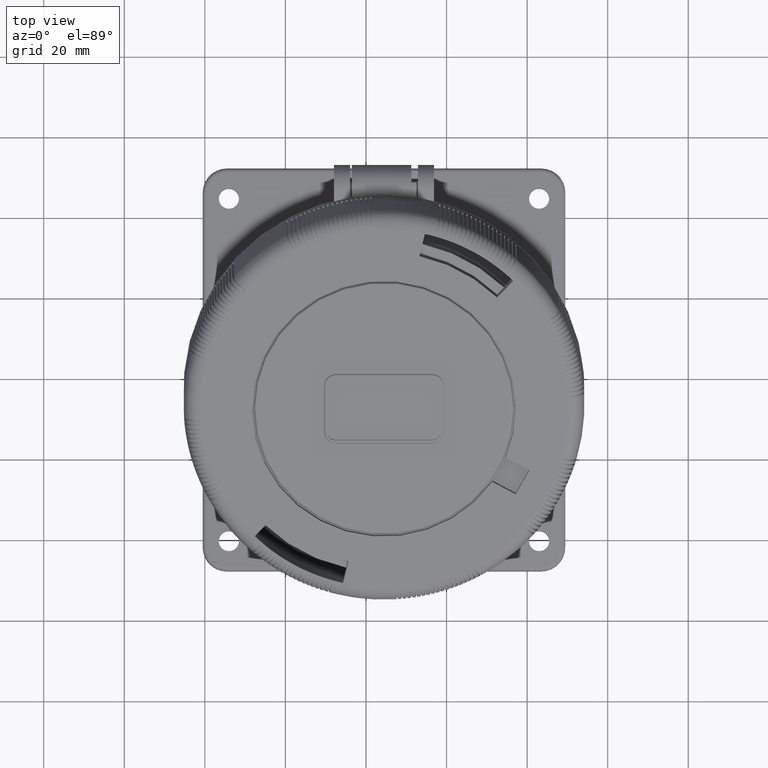
[diagram: clean part render]
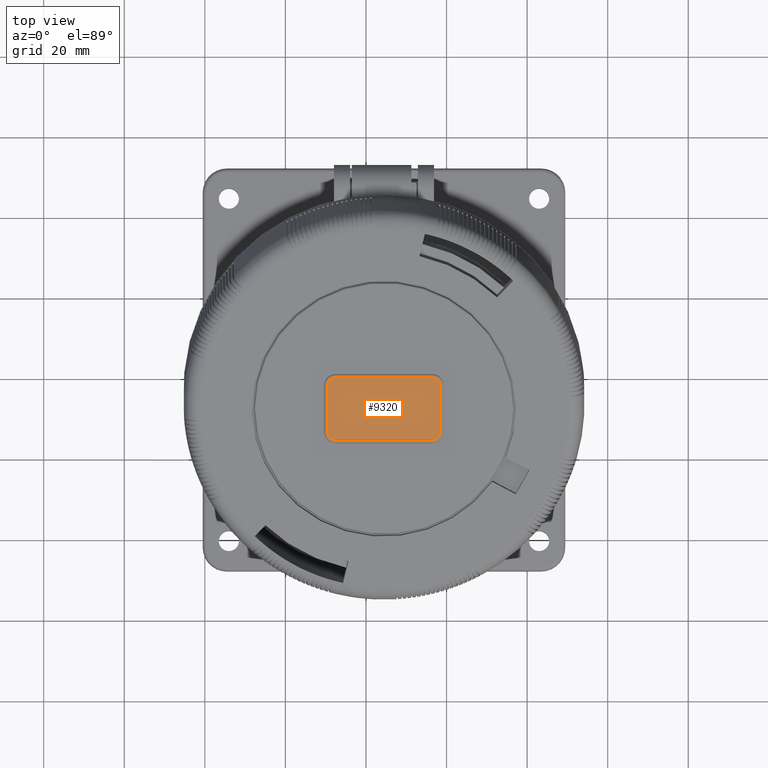
[diagram: same view with one face highlighted and labeled with its STEP entity id]
A machine part, top view. The second image highlights one B-rep face of the part: STEP entity #9320.
In plain terms, the highlighted planar face has unit normal (-0, 0.2588, -0.9659).
Its self-contained STEP definition (entity closure, byte-faithful):
#3360=CARTESIAN_POINT('',(19.7727562927561,32.8724892693701,19.7));
#3370=DIRECTION('',(-1.23518450117107E-16,1.538929603798E-16,-1.));
#3380=DIRECTION('',(0.877341808329295,0.479865972285473,
-3.45199053272326E-17));
#3390=AXIS2_PLACEMENT_3D('',#3360,#3370,#3380);
#3400=PLANE('',#3390);
#6800=CARTESIAN_POINT('',(54.7562035330436,61.1252930096366,19.7));
#6810=VERTEX_POINT('',#6800);
#6840=CARTESIAN_POINT('',(44.228101833092,55.366901342211,19.7));
#6850=DIRECTION('',(0.877341808329295,0.479865972285473,
-3.45199053272326E-17));
#6860=VECTOR('',#6850,1.);
#6870=LINE('',#6840,#6860);
#6880=CARTESIAN_POINT('',(33.7000001331405,49.6085096747853,19.7));
#6890=VERTEX_POINT('',#6880);
#6900=EDGE_CURVE('',#6890,#6810,#6870,.T.);
#7180=CARTESIAN_POINT('',(38.6634401284785,36.3659924136042,19.7));
#7190=VERTEX_POINT('',#7180);
#7220=CARTESIAN_POINT('',(40.4181237451371,37.3257243581752,19.7));
#7230=DIRECTION('',(-9.71445146547012E-17,1.38777878078145E-16,-1.));
#7240=DIRECTION('',(0.877341808329295,0.479865972285473,
-3.45199053272326E-17));
#7250=AXIS2_PLACEMENT_3D('',#7220,#7230,#7240);
#7260=CIRCLE('',#7250,2.);
#7270=CARTESIAN_POINT('',(41.3778556897081,35.5710407415166,19.7));
#7280=VERTEX_POINT('',#7270);
#7290=EDGE_CURVE('',#7280,#7190,#7260,.T.);
#7540=CARTESIAN_POINT('',(51.9059573896596,41.3294324089422,19.7));
#7550=DIRECTION('',(-0.877341808329295,-0.479865972285473,
3.45199053272326E-17));
#7560=VECTOR('',#7550,1.);
#7570=LINE('',#7540,#7560);
#7580=CARTESIAN_POINT('',(62.4340590896112,47.0878240763679,19.7));
#7590=VERTEX_POINT('',#7580);
#7600=EDGE_CURVE('',#7590,#7280,#7570,.T.);
#7850=CARTESIAN_POINT('',(61.4743271450402,48.8425076930265,19.7));
#7860=DIRECTION('',(-9.71445146547012E-17,1.38777878078145E-16,-1.));
#7870=DIRECTION('',(0.877341808329295,0.479865972285473,
-3.45199053272326E-17));
#7880=AXIS2_PLACEMENT_3D('',#7850,#7860,#7870);
#7890=CIRCLE('',#7880,2.);
#7900=CARTESIAN_POINT('',(63.2290107616988,49.8022396375975,19.7));
#7910=VERTEX_POINT('',#7900);
#7920=EDGE_CURVE('',#7910,#7590,#7890,.T.);
#8170=CARTESIAN_POINT('',(60.349814927986,55.0662904875732,19.7));
#8180=DIRECTION('',(0.479865972285473,-0.877341808329295,
-1.94289029309402E-16));
#8190=VECTOR('',#8180,1.);
#8200=LINE('',#8170,#8190);
#8210=CARTESIAN_POINT('',(57.4706190942731,60.330341337549,19.7));
#8220=VERTEX_POINT('',#8210);
#8230=EDGE_CURVE('',#8220,#7910,#8200,.T.);
#8480=CARTESIAN_POINT('',(55.7159354776145,59.3706093929781,19.7));
#8490=DIRECTION('',(-9.71445146547012E-17,1.38777878078145E-16,-1.));
#8500=DIRECTION('',(0.877341808329295,0.479865972285473,
-3.45199053272326E-17));
#8510=AXIS2_PLACEMENT_3D('',#8480,#8490,#8500);
#8520=CIRCLE('',#8510,2.);
#8530=EDGE_CURVE('',#6810,#8220,#8520,.T.);
#8730=CARTESIAN_POINT('',(34.6597320777115,47.8538260581267,19.7));
#8740=DIRECTION('',(-9.71445146547012E-17,1.38777878078145E-16,-1.));
#8750=DIRECTION('',(0.877341808329295,0.479865972285473,
-3.45199053272326E-17));
#8760=AXIS2_PLACEMENT_3D('',#8730,#8740,#8750);
#8770=CIRCLE('',#8760,2.);
#8780=CARTESIAN_POINT('',(32.9050484610529,46.8940941135558,19.7));
#8790=VERTEX_POINT('',#8780);
#8800=EDGE_CURVE('',#8790,#6890,#8770,.T.);
#9050=CARTESIAN_POINT('',(35.7842442947657,41.63004326358,19.7));
#9060=DIRECTION('',(-0.479865972285473,0.877341808329295,
1.94289029309402E-16));
#9070=VECTOR('',#9060,1.);
#9080=LINE('',#9050,#9070);
#9090=EDGE_CURVE('',#7190,#8790,#9080,.T.);
#9220=ORIENTED_EDGE('',*,*,#6900,.F.);
#9230=ORIENTED_EDGE('',*,*,#8530,.F.);
#9240=ORIENTED_EDGE('',*,*,#8230,.F.);
#9250=ORIENTED_EDGE('',*,*,#7920,.F.);
#9260=ORIENTED_EDGE('',*,*,#7600,.F.);
#9270=ORIENTED_EDGE('',*,*,#7290,.F.);
#9280=ORIENTED_EDGE('',*,*,#9090,.F.);
#9290=ORIENTED_EDGE('',*,*,#8800,.F.);
#9300=EDGE_LOOP('',(#9290,#9280,#9270,#9260,#9250,#9240,#9230,#9220));
#9310=FACE_OUTER_BOUND('',#9300,.T.);
#9320=ADVANCED_FACE('F12',(#9310),#3400,.F.);